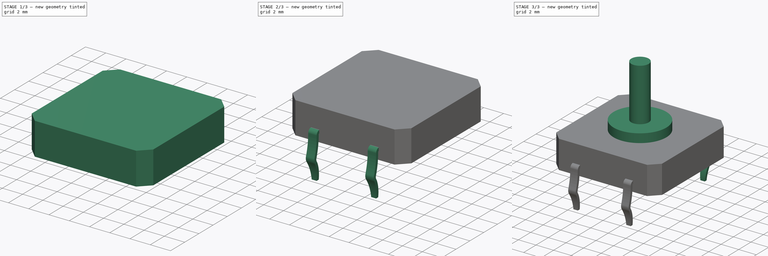
[diagram: build sequence overview — one tinted view per stage of 3, left to right]
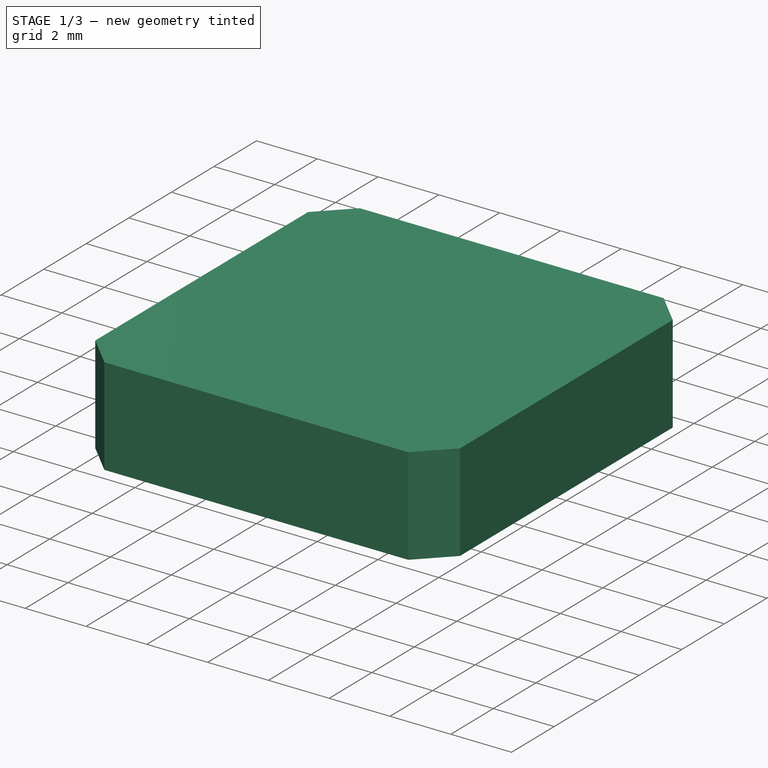
[diagram: stage 1 of 3 — iso view after this stage's code; geometry added in this stage tinted green]
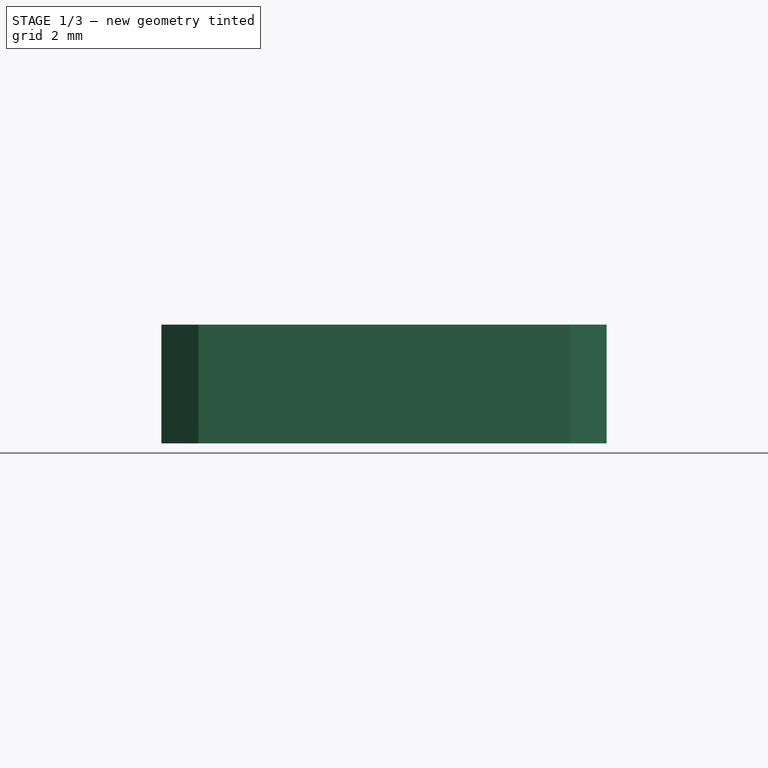
[diagram: stage 1 of 3 — front view after this stage's code; geometry added in this stage tinted green]
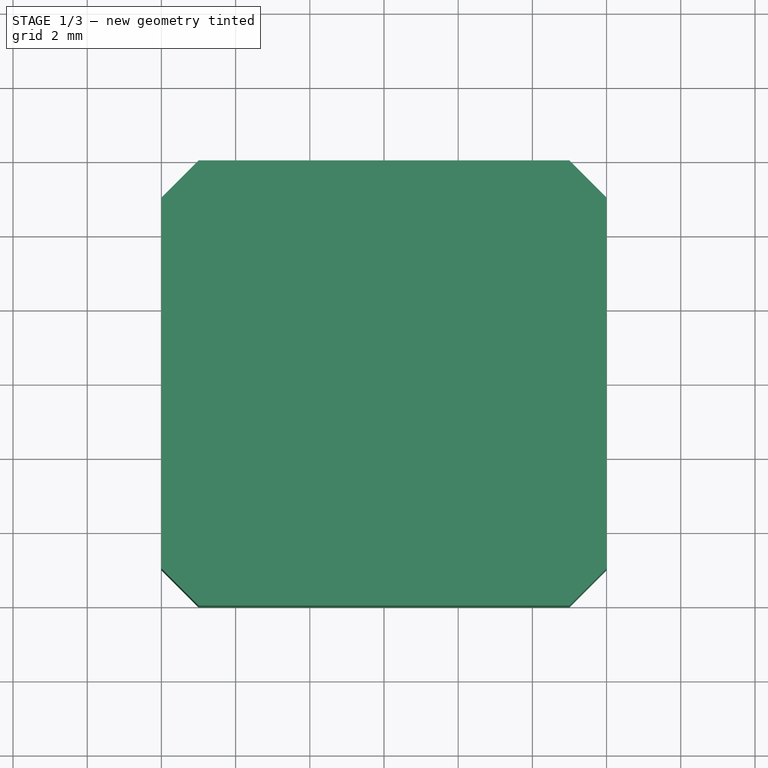
[diagram: stage 1 of 3 — top view after this stage's code; geometry added in this stage tinted green]
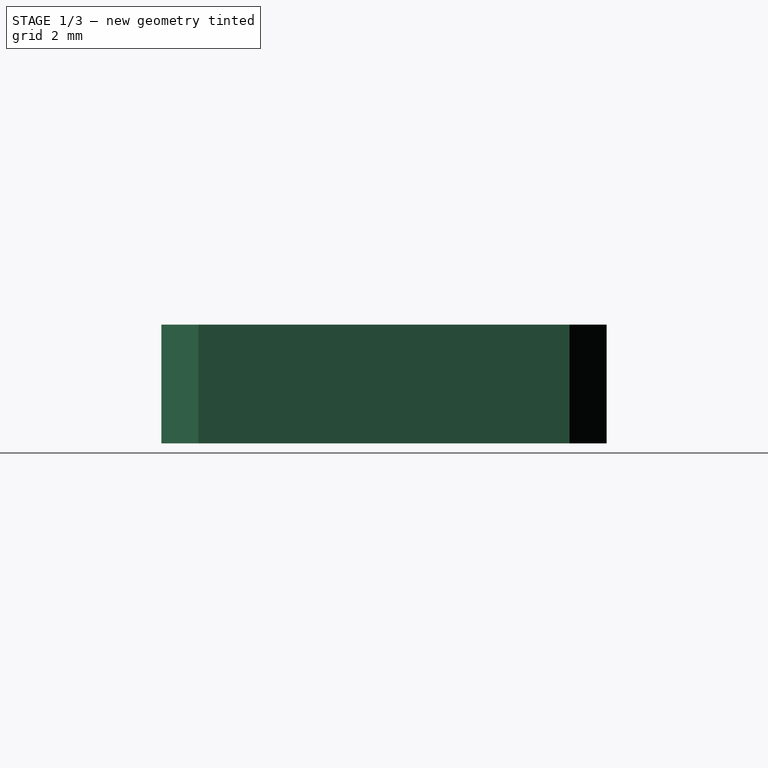
[diagram: stage 1 of 3 — right view after this stage's code; geometry added in this stage tinted green]
FCSTD DOCUMENT  (FreeCAD 0.20R)
Label: Base boton
License: All rights reserved
LicenseURL: http://en.wikipedia.org/wiki/All_rights_reserved
objects: Sketcher::SketchObject×5, PartDesign::Mirrored×3, PartDesign::Plane×2, PartDesign::Pad×1, PartDesign::Chamfer×1, PartDesign::AdditivePipe×1, PartDesign::Pocket×1, PartDesign::MultiTransform×1, PartDesign::Revolution×1, PartDesign::Body×1
note: 22 computed .brp shape members not serialized (recipe doc carries the construction recipe); baked Part::Feature solids carry a one-line shape summary decoded from their .brp

FEATURE [Sketcher::SketchObject] Sketch
  FullyConstrained = true
  MapMode = 5
  Support = -> [XY_Plane]
  sketch-geometry (6):
    g0: LineSegment StartX=-6 StartY=6 StartZ=0 EndX=6 EndY=6 EndZ=0
    g1: LineSegment StartX=6 StartY=6 StartZ=0 EndX=6 EndY=-6 EndZ=0
    g2: LineSegment StartX=6 StartY=-6 StartZ=0 EndX=-6 EndY=-6 EndZ=0
    g3: LineSegment StartX=-6 StartY=-6 StartZ=0 EndX=-6 EndY=6 EndZ=0
    g4: LineSegment StartX=-6 StartY=6 StartZ=0 EndX=6 EndY=-6 EndZ=0
    g5: LineSegment StartX=6 StartY=6 StartZ=0 EndX=-6 EndY=-6 EndZ=0
  constraints (16):
    c: Coincident(g0,g1)
    c: Coincident(g1,g2)
    c: Coincident(g2,g3)
    c: Coincident(g3,g0)
    c: Horizontal(g0)
    c: Horizontal(g2)
    c: Vertical(g1)
    c: Vertical(g3)
    c: DistanceX(g0,g0) = 12
    c: Coincident(g4,g0)
    c: Coincident(g4,g1)
    c: Coincident(g5,g0)
    c: Coincident(g5,g2)
    c: PointOnObject(g-1,g5)
    c: PointOnObject(g-1,g4)
    c: Equal(g0,g1)
FEATURE [PartDesign::Pad] Pad
  Direction = (0,0,1)
  Length = 3.2
  Length2 = 10
  Profile = -> Sketch
  ReferenceAxis = -> Sketch [N_Axis]
  Type = 0
FEATURE [PartDesign::Chamfer] Chamfer
  Angle = 45
  Base = -> Pad [Edge8,Edge5,Edge2,Edge1]
  BaseFeature = -> Pad
  ChamferType = 0
  FlipDirection = false
  Size = 1
  Size2 = 1
  SupportTransform = false
  UseAllEdges = false
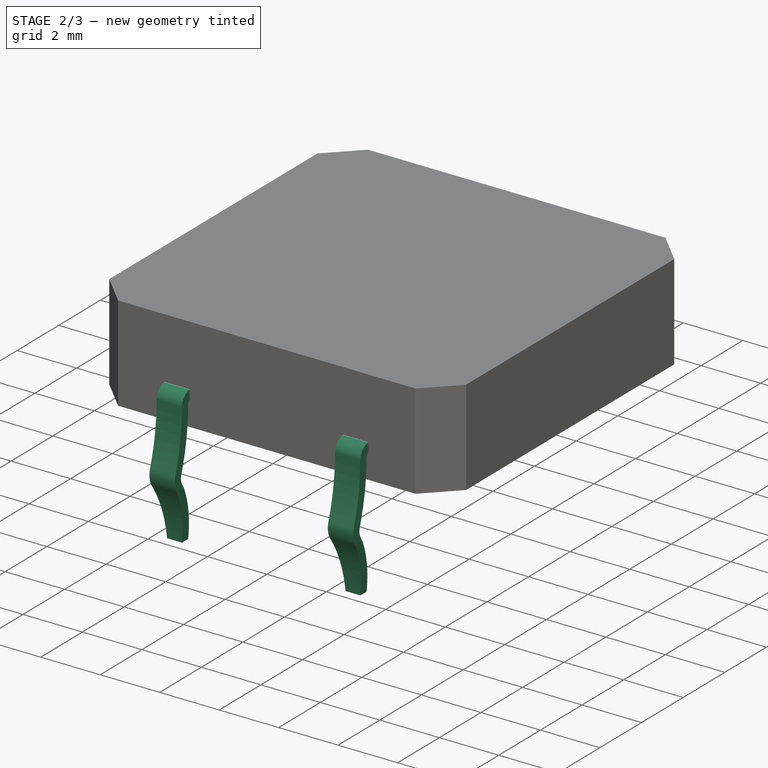
[diagram: stage 2 of 3 — iso view after this stage's code; geometry added in this stage tinted green]
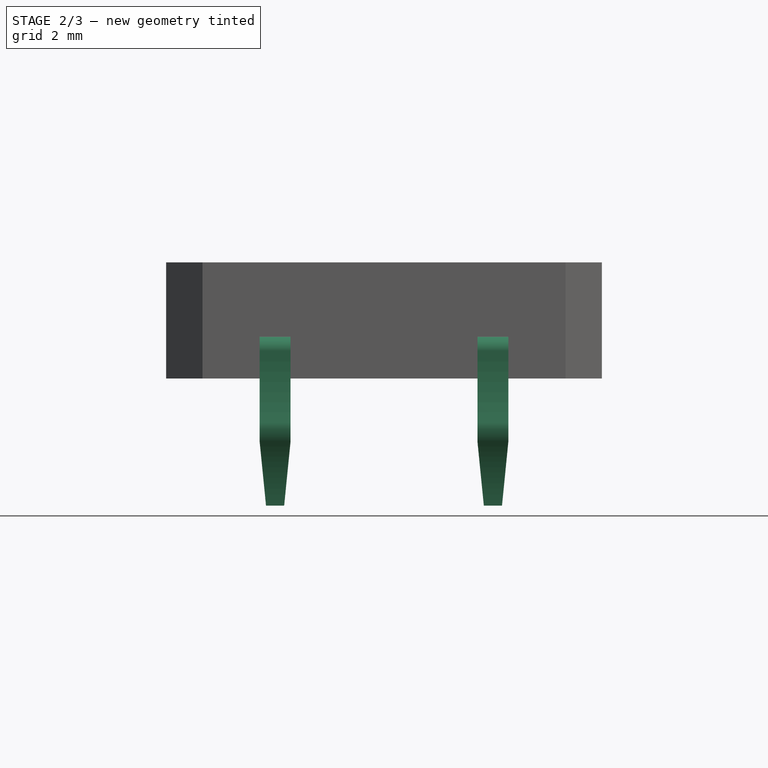
[diagram: stage 2 of 3 — front view after this stage's code; geometry added in this stage tinted green]
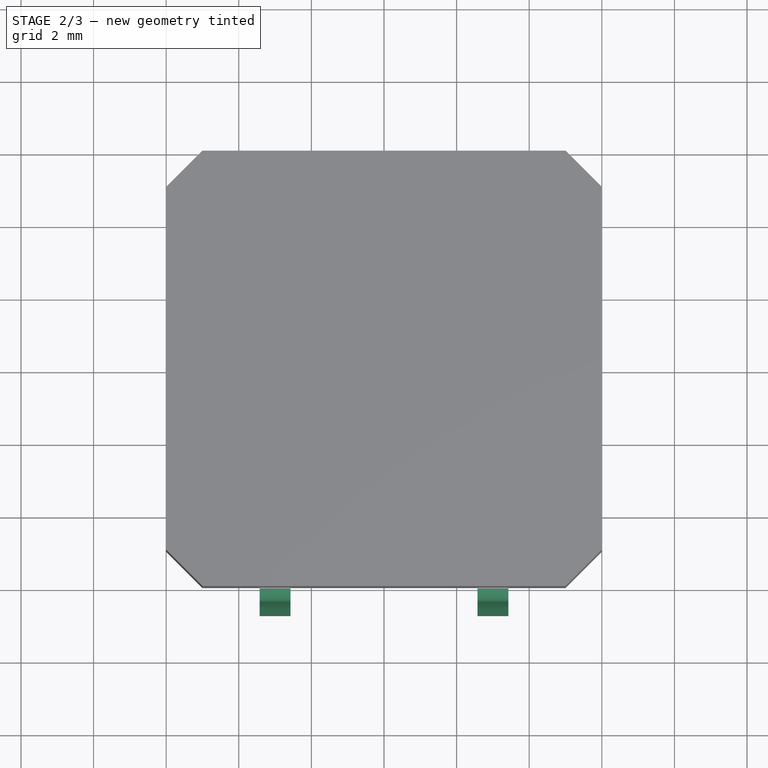
[diagram: stage 2 of 3 — top view after this stage's code; geometry added in this stage tinted green]
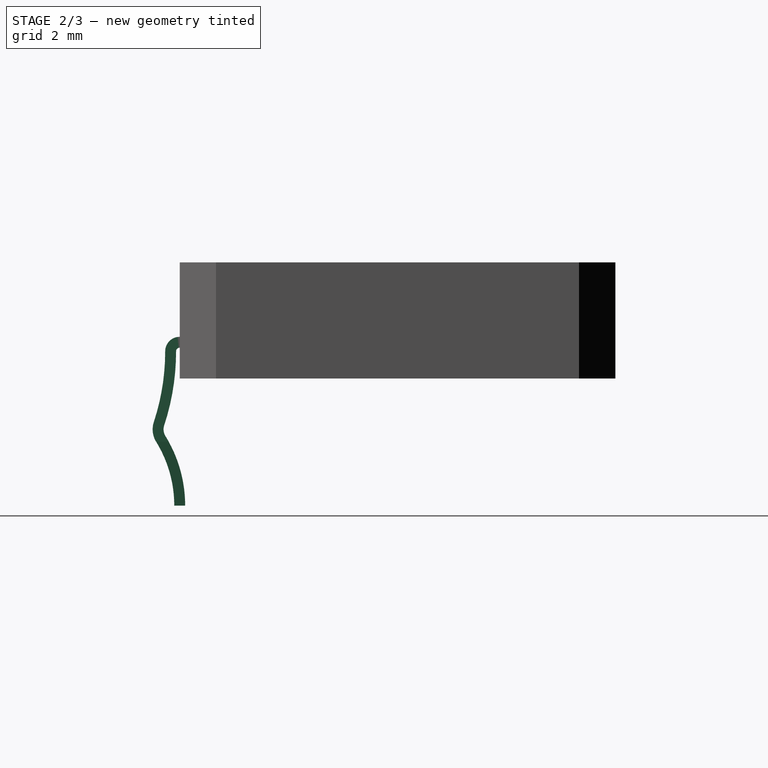
[diagram: stage 2 of 3 — right view after this stage's code; geometry added in this stage tinted green]
FEATURE [PartDesign::Plane] DatumPlane
  AttachmentOffset = pos=(0,0,-2) rot=(0,0,1;0rad)
  Length = 60
  MapMode = 7
  Placement = pos=(3,-6,0) rot=(0.57735,0.57735,0.57735;2.0944rad)
  ResizeMode = 0
  Support = -> [Chamfer]
  Width = 60
FEATURE [Sketcher::SketchObject] Sketch001
  FullyConstrained = true
  MapMode = 5
  Placement = pos=(3,-6,0) rot=(0.57735,0.57735,0.57735;2.0944rad)
  Support = -> [DatumPlane]
  sketch-geometry (4):
    g0: ArcOfCircle CenterX=-3.5 CenterY=-3.5 CenterZ=0 NormalX=0 NormalY=0 NormalZ=1 AngleXU=0 Radius=3.5 StartAngle=0 EndAngle=0.552715
    g1: ArcOfCircle CenterX=-0.0955911 CenterY=-1.4 CenterZ=0 NormalX=0 NormalY=0 NormalZ=1 AngleXU=0 Radius=0.5 StartAngle=2.82284 EndAngle=3.69431
    g2: ArcOfCircle CenterX=-6.61061 CenterY=0.75 CenterZ=0 NormalX=0 NormalY=0 NormalZ=1 AngleXU=0 Radius=6.36061 StartAngle=5.96443 EndAngle=6.28319
    g3: ArcOfCircle CenterX=0 CenterY=0.75 CenterZ=0 NormalX=0 NormalY=0 NormalZ=1 AngleXU=0 Radius=0.25 StartAngle=1.5708 EndAngle=3.14159
  constraints (13):
    c: Tangent(g0,g-1)
    c: DistanceY(g0,g-1) = 3.5
    c: Tangent(g0,g-2) = -1.5708
    c: Tangent(g1,g0) = 1.5708
    c: Tangent(g2,g1) = 1.5708
    c: PointOnObject(g3,g-2)
    c: Tangent(g3,g2) = 1.5708
    c: DistanceY(g-1,g3) = 1
    c: DistanceY(g1,g3) = 2.4
    c: Radius(g1) = 0.5
    c: Vertical(g3,g3)
    c: Horizontal(g2,g3)
    c: DistanceX(g2,g3) = 0.25
FEATURE [PartDesign::Plane] DatumPlane001
  Length = 60
  MapMode = 7
  Placement = pos=(3,-6,-3.5) rot=(0,1,0;3.14159rad)
  ResizeMode = 0
  Support = -> [Sketch001]
  Width = 60
FEATURE [Sketcher::SketchObject] Sketch002
  FullyConstrained = true
  MapMode = 5
  Placement = pos=(3,-6,-3.5) rot=(0,1,0;3.14159rad)
  Support = -> [DatumPlane001]
  sketch-geometry (6):
    g0: LineSegment StartX=-0.425 StartY=0.15 StartZ=0 EndX=0.425 EndY=0.15 EndZ=0
    g1: LineSegment StartX=0.425 StartY=0.15 StartZ=0 EndX=0.425 EndY=-0.15 EndZ=0
    g2: LineSegment StartX=0.425 StartY=-0.15 StartZ=0 EndX=-0.425 EndY=-0.15 EndZ=0
    g3: LineSegment StartX=-0.425 StartY=-0.15 StartZ=0 EndX=-0.425 EndY=0.15 EndZ=0
    g4: LineSegment StartX=-0.425 StartY=0.15 StartZ=0 EndX=0.425 EndY=-0.15 EndZ=0
    g5: LineSegment StartX=0.425 StartY=0.15 StartZ=0 EndX=-0.425 EndY=-0.15 EndZ=0
  constraints (16):
    c: Coincident(g0,g1)
    c: Coincident(g1,g2)
    c: Coincident(g2,g3)
    c: Coincident(g3,g0)
    c: Horizontal(g0)
    c: Horizontal(g2)
    c: Vertical(g1)
    c: Vertical(g3)
    c: DistanceY(g1,g0) = 0.3
    c: DistanceX(g0,g0) = 0.85
    c: Coincident(g4,g0)
    c: Coincident(g4,g1)
    c: Coincident(g5,g0)
    c: Coincident(g5,g2)
    c: PointOnObject(g-1,g4)
    c: PointOnObject(g-1,g5)
FEATURE [PartDesign::AdditivePipe] AdditivePipe
  AuxilleryCurvelinear = true
  AuxillerySpineTangent = false
  BaseFeature = -> Chamfer
  Binormal = (0,0,0)
  Mode = 0
  Profile = -> Sketch002 [Edge3]
  Spine = -> Sketch001 [Edge1,Edge2,Edge3,Edge4]
  SpineTangent = false
  Transformation = 1
  Transition = 2
FEATURE [Sketcher::SketchObject] Sketch003
  ExternalGeometry = -> [AdditivePipe]
  FullyConstrained = true
  MapMode = 5
  Placement = pos=(0,-6,0) rot=(1,0,0;1.5708rad)
  Support = -> [AdditivePipe]
  sketch-geometry (11):
    g0: LineSegment StartX=2.575 StartY=-1.74125 StartZ=0 EndX=2.75 EndY=-3.5 EndZ=0
    g1: LineSegment StartX=2.75 StartY=-3.5 StartZ=0 EndX=3.25 EndY=-3.5 EndZ=0
    g2: LineSegment StartX=3.25 StartY=-3.5 StartZ=0 EndX=3.425 EndY=-1.74125 EndZ=0
    g3: LineSegment StartX=2.575 StartY=-1.74125 StartZ=0 EndX=2.075 EndY=-1.74125 EndZ=0
    g4: LineSegment StartX=2.075 StartY=-1.74125 StartZ=0 EndX=2.075 EndY=-4 EndZ=0
    g5: LineSegment StartX=2.075 StartY=-4 StartZ=0 EndX=3.925 EndY=-4 EndZ=0
    g6: LineSegment StartX=3.925 StartY=-4 StartZ=0 EndX=3.925 EndY=-1.74125 EndZ=0
    g7: LineSegment StartX=3.925 StartY=-1.74125 StartZ=0 EndX=3.425 EndY=-1.74125 EndZ=0
    g8: LineSegment StartX=2.575 StartY=-3.5 StartZ=0 EndX=2.75 EndY=-3.5 EndZ=0
    g9: LineSegment StartX=3.25 StartY=-3.5 StartZ=0 EndX=3.425 EndY=-3.5 EndZ=0
    g10: LineSegment StartX=3.25 StartY=-3.5 StartZ=0 EndX=3.25 EndY=-4 EndZ=0
  constraints (29):
    c: Coincident(g0,g-5)
    c: Coincident(g1,g0)
    c: Horizontal(g1)
    c: Coincident(g2,g1)
    c: Coincident(g2,g-4)
    c: Coincident(g3,g0)
    c: Horizontal(g3)
    c: Coincident(g3,g4)
    c: Vertical(g4)
    c: Coincident(g4,g5)
    c: Horizontal(g5)
    c: Coincident(g5,g6)
    c: Vertical(g6)
    c: Coincident(g6,g7)
    c: Coincident(g7,g2)
    c: Horizontal(g7)
    c: Horizontal(g0,g-3)
    c: Coincident(g8,g-3)
    c: Coincident(g8,g0)
    c: Coincident(g9,g1)
    c: Coincident(g9,g-4)
    c: Equal(g9,g8)
    c: Equal(g3,g1)
    c: Equal(g1,g7)
    c: DistanceX(g0,g1) = 0.5
    c: Coincident(g10,g1)
    c: PointOnObject(g10,g5)
    c: Vertical(g10)
    c: Equal(g1,g10)
FEATURE [PartDesign::Pocket] Pocket
  BaseFeature = -> AdditivePipe
  Direction = (0,1,-2e-16)
  Length = 8
  Length2 = 5
  Midplane = true
  Profile = -> Sketch003
  ReferenceAxis = -> Sketch003 [N_Axis]
  Type = 1
FEATURE [PartDesign::Mirrored] Mirrored
  BaseFeature = -> Pocket
  MirrorPlane = -> YZ_Plane
  Originals = -> [AdditivePipe,Pocket]
  Overlap = 0
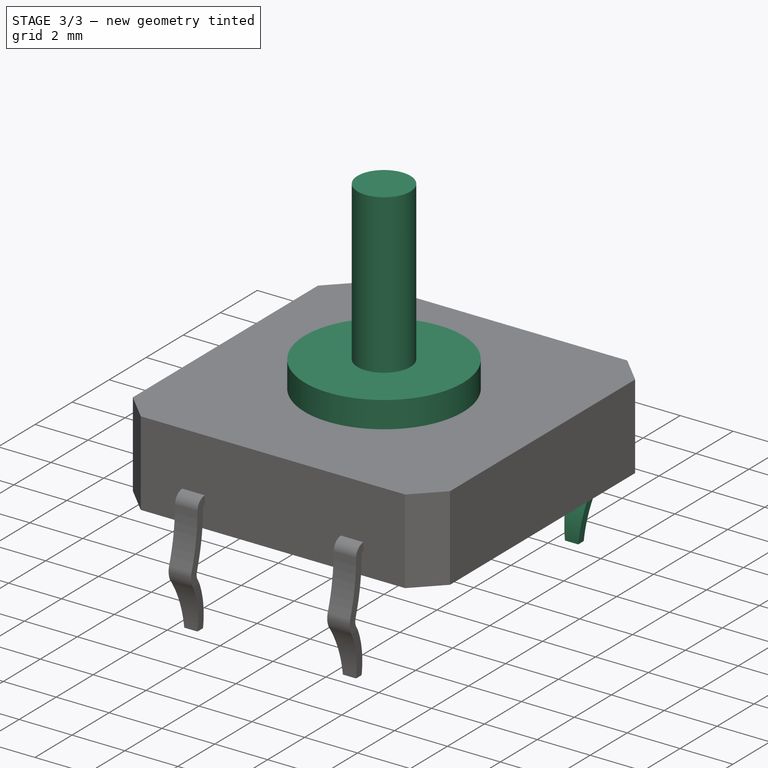
[diagram: stage 3 of 3 — iso view after this stage's code; geometry added in this stage tinted green]
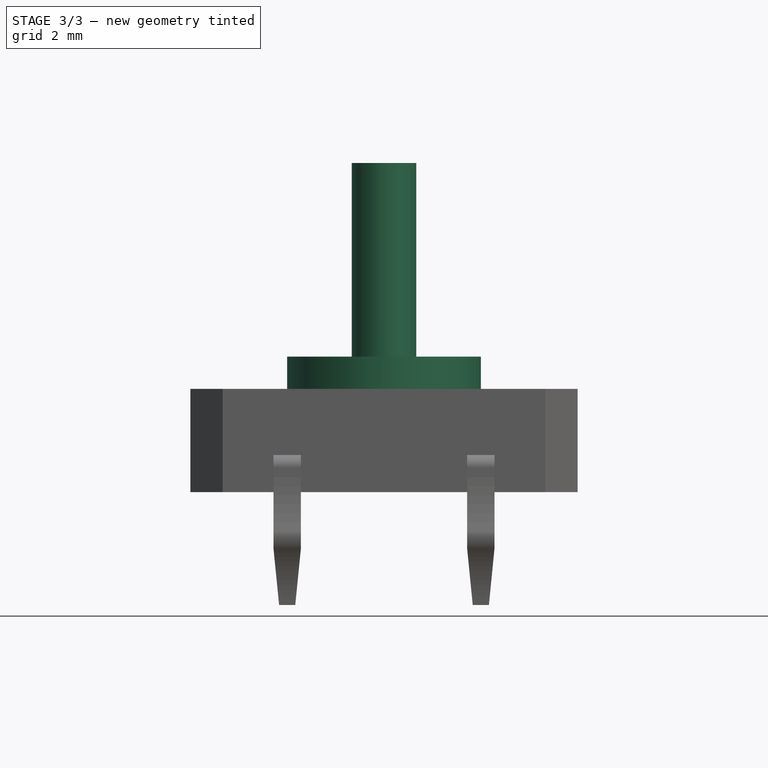
[diagram: stage 3 of 3 — front view after this stage's code; geometry added in this stage tinted green]
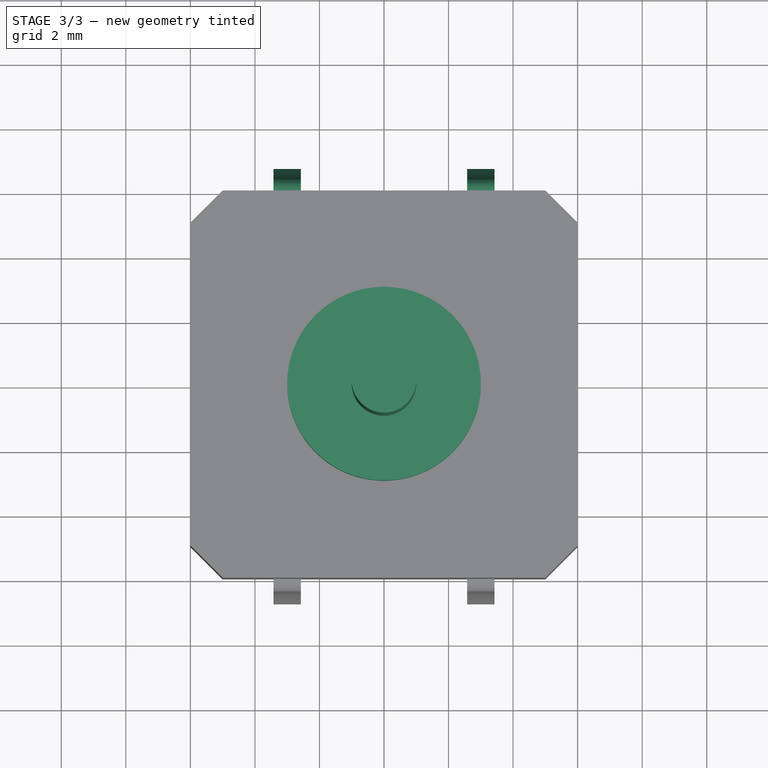
[diagram: stage 3 of 3 — top view after this stage's code; geometry added in this stage tinted green]
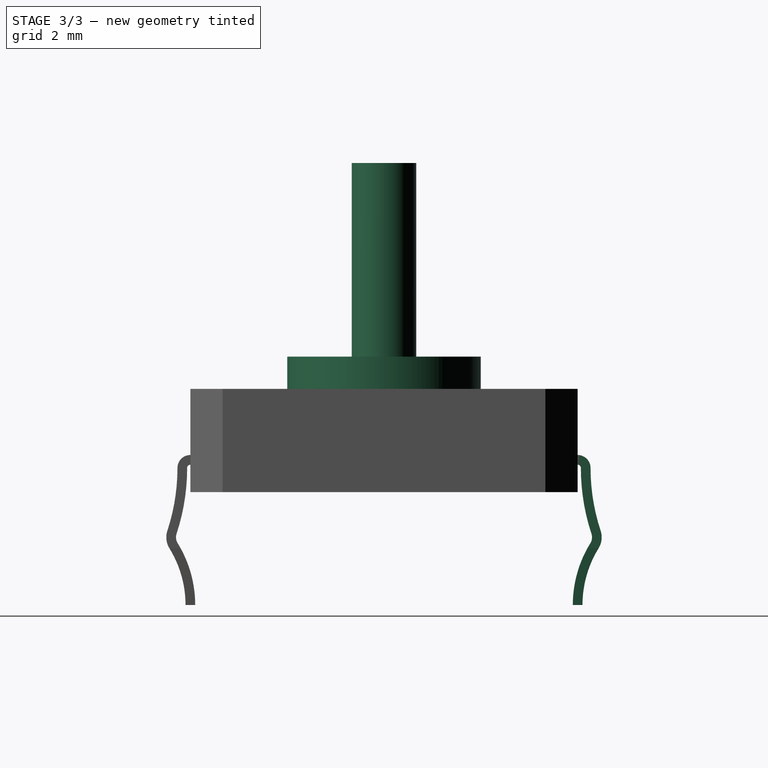
[diagram: stage 3 of 3 — right view after this stage's code; geometry added in this stage tinted green]
FEATURE [PartDesign::Mirrored] Mirrored001
  MirrorPlane = -> XZ_Plane
  Overlap = 0
FEATURE [PartDesign::Mirrored] Mirrored002
  MirrorPlane = -> YZ_Plane
  Overlap = 0
FEATURE [PartDesign::MultiTransform] MultiTransform
  BaseFeature = -> Mirrored
  Originals = -> [AdditivePipe,Pocket]
  Overlap = 0
  Transformations = -> [Mirrored001,Mirrored002]
FEATURE [Sketcher::SketchObject] Sketch004
  ExternalGeometry = -> [MultiTransform]
  FullyConstrained = true
  MapMode = 5
  Placement = pos=(0,0,0) rot=(1,0,0;1.5708rad)
  Support = -> [XZ_Plane]
  sketch-geometry (7):
    g0: LineSegment StartX=-3 StartY=3.2 StartZ=0 EndX=-3 EndY=4.2 EndZ=0
    g1: LineSegment StartX=-3 StartY=4.2 StartZ=0 EndX=-1 EndY=4.2 EndZ=0
    g2: LineSegment StartX=-1 StartY=4.2 StartZ=0 EndX=-1 EndY=10.2 EndZ=0
    g3: LineSegment StartX=-1 StartY=10.2 StartZ=0 EndX=0 EndY=10.2 EndZ=0
    g4: LineSegment StartX=0 StartY=10.2 StartZ=0 EndX=0 EndY=3.2 EndZ=0
    g5: LineSegment StartX=0 StartY=3.2 StartZ=0 EndX=-3 EndY=3.2 EndZ=0
    g6: LineSegment StartX=0 StartY=10.2 StartZ=0 EndX=0 EndY=3.2 EndZ=0
  constraints (20):
    c: Coincident(g0,g1)
    c: Horizontal(g1)
    c: Coincident(g1,g2)
    c: Vertical(g2)
    c: Coincident(g2,g3)
    c: PointOnObject(g3,g-2)
    c: Horizontal(g3)
    c: Coincident(g3,g4)
    c: Vertical(g4)
    c: Coincident(g4,g5)
    c: Coincident(g5,g0)
    c: Horizontal(g5)
    c: Vertical(g0)
    c: DistanceY(g4,g3) = 7
    c: Horizontal(g0,g-3)
    c: DistanceY(g0,g0) = 1
    c: DistanceX(g0,g4) = 3
    c: DistanceX(g2,g3) = 1
    c: Coincident(g6,g3)
    c: Coincident(g6,g4)
FEATURE [PartDesign::Revolution] Revolution
  Angle = 360
  Axis = (0,-2e-16,1)
  Base = (0,0,0)
  BaseFeature = -> MultiTransform
  Profile = -> Sketch004
  ReferenceAxis = -> Sketch004 [V_Axis]
FEATURE [PartDesign::Body] Body
  Group = -> [Sketch,Pad,Chamfer,DatumPlane,Sketch001,DatumPlane001,Sketch002,AdditivePipe,Sketch003,Pocket,Mirrored,MultiTransform,Mirrored001,Mirrored002,Sketch004,Revolution]
  Origin = -> Origin
  Tip = -> Revolution
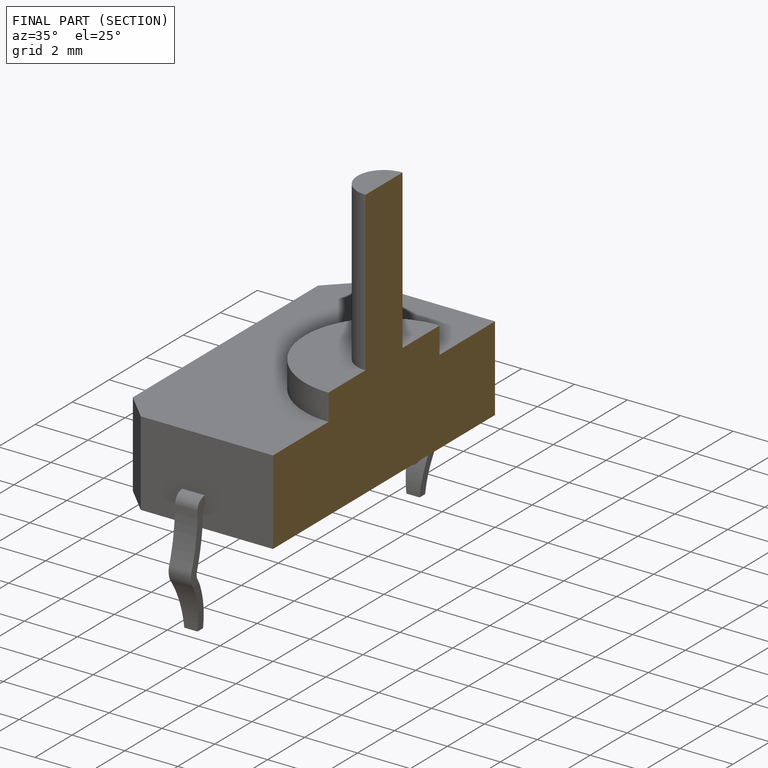
[diagram: finished part — half-section view (interior)]
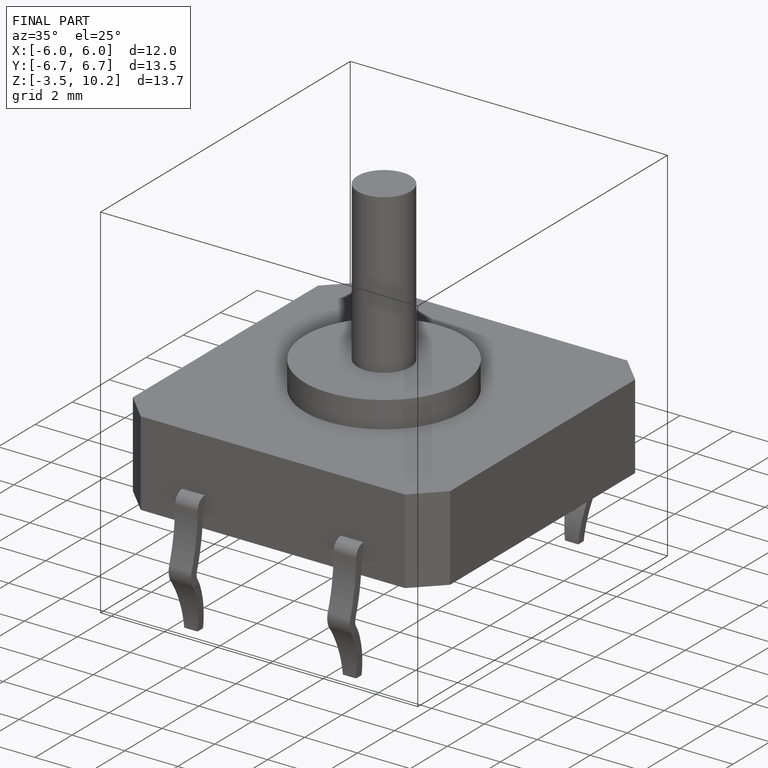
[diagram: finished part — iso view with bounding-box wireframe]
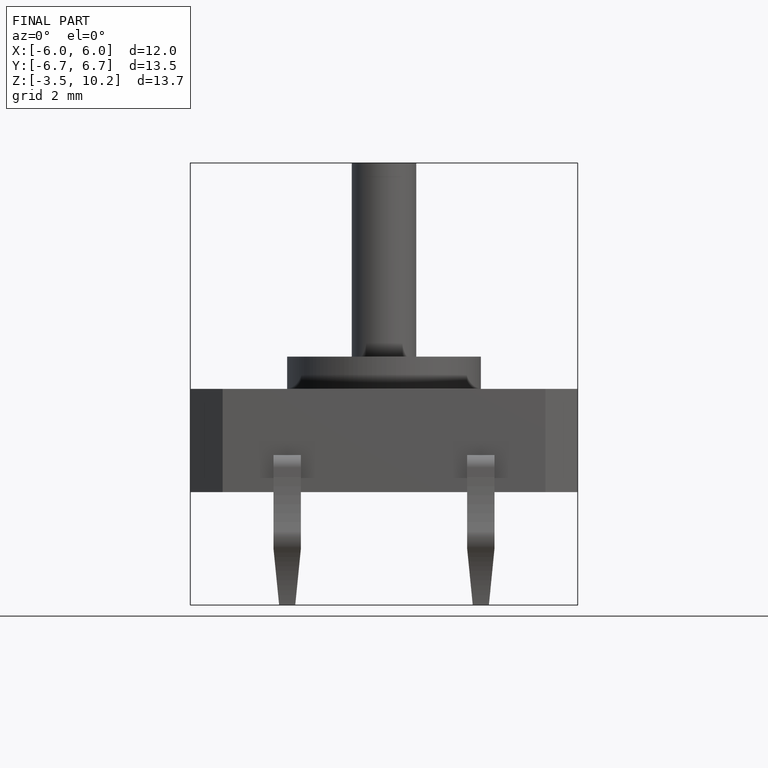
[diagram: finished part — front view with bounding-box wireframe]
